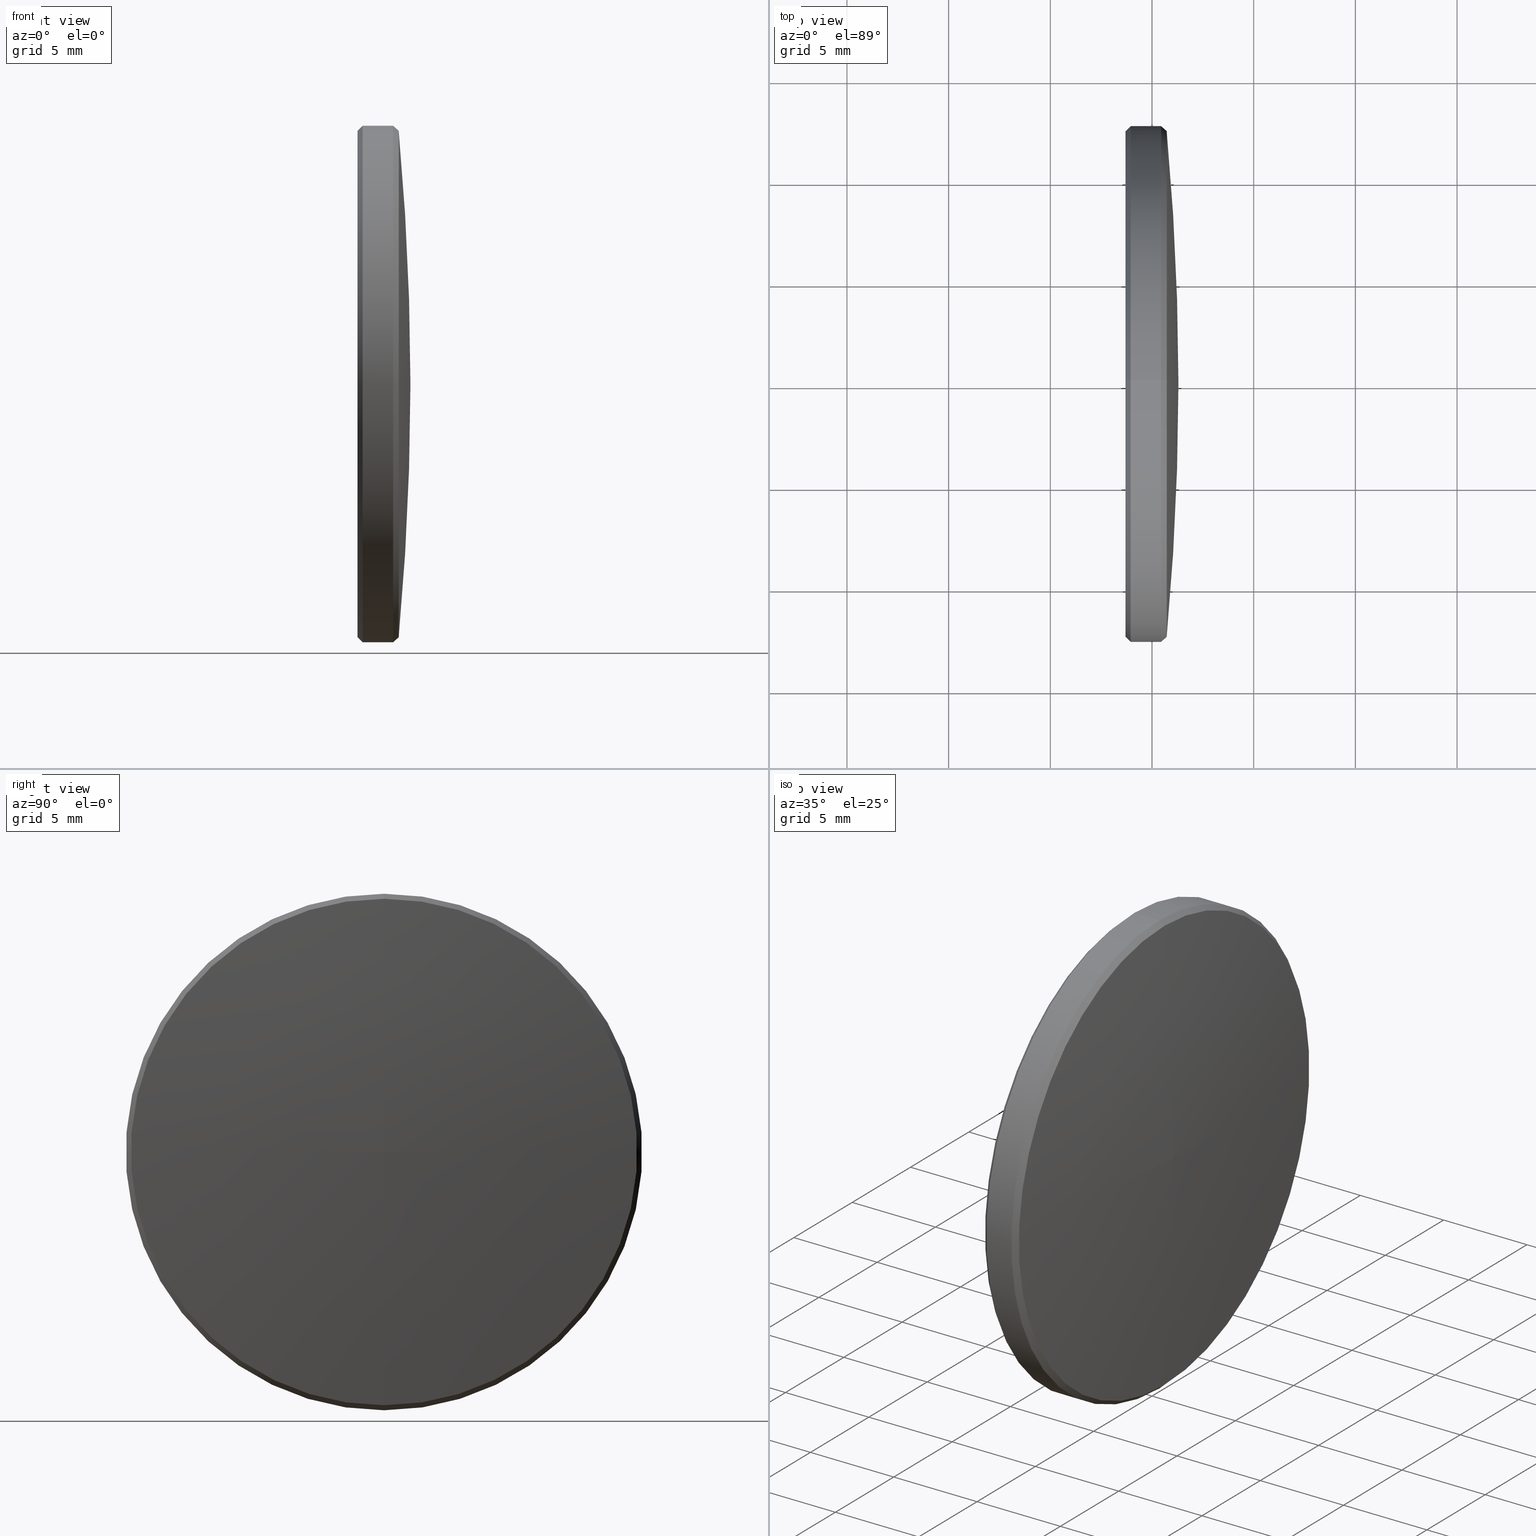
[diagram: canonical four-view strip — front | top / right | iso, engineering-drawing reading convention]
A machine part, canonical four-view strip (front | top / right | iso — engineering-drawing reading convention). The complete STEP part file that produces these views, byte-faithful:
ISO-10303-21;
HEADER;
FILE_DESCRIPTION (( 'STEP AP203' ),
    '1' );
FILE_NAME ('4288-E0W.STEP',
    '2015-05-29T14:22:48',
    ( 'admin' ),
    ( '' ),
    'SwSTEP 2.0',
    'SolidWorks 2014',
    '' );
FILE_SCHEMA (( 'CONFIG_CONTROL_DESIGN' ));
ENDSEC;

DATA;
#1 = CIRCLE ( 'NONE', #140, 12.70000000000000100 ) ;
#2 = PERSON_AND_ORGANIZATION ( #90, #36 ) ;
#3 = CARTESIAN_POINT ( 'NONE',  ( 1.300000000000000000, 0.0000000000000000000, 0.0000000000000000000 ) ) ;
#4 = DIRECTION ( 'NONE',  ( 0.0000000000000000000, 0.0000000000000000000, -1.000000000000000000 ) ) ;
#5 = ORIENTED_EDGE ( 'NONE', *, *, #170, .F. ) ;
#6 = FACE_OUTER_BOUND ( 'NONE', #23, .T. ) ;
#7 = ORIENTED_EDGE ( 'NONE', *, *, #132, .T. ) ;
#8 = PERSON_AND_ORGANIZATION ( #90, #36 ) ;
#9 = ORIENTED_EDGE ( 'NONE', *, *, #179, .F. ) ;
#10 = LINE ( 'NONE', #125, #96 ) ;
#11 = EDGE_CURVE ( 'NONE', #263, #286, #30, .T. ) ;
#12 = DIRECTION ( 'NONE',  ( 1.000000000000000000, 0.0000000000000000000, 0.0000000000000000000 ) ) ;
#13 = DIRECTION ( 'NONE',  ( 0.0000000000000000000, 0.0000000000000000000, -1.000000000000000000 ) ) ;
#14 = AXIS2_PLACEMENT_3D ( 'NONE', #72, #165, #152 ) ;
#15 = DIRECTION ( 'NONE',  ( -1.000000000000000000, -0.0000000000000000000, -0.0000000000000000000 ) ) ;
#16 =( NAMED_UNIT ( * ) PLANE_ANGLE_UNIT ( ) SI_UNIT ( $, .RADIAN. ) );
#17 = ADVANCED_FACE ( 'NONE', ( #283 ), #135, .T. ) ;
#18 = AXIS2_PLACEMENT_3D ( 'NONE', #191, #95, #4 ) ;
#19 = EDGE_CURVE ( 'NONE', #83, #286, #1, .T. ) ;
#20 = DIRECTION ( 'NONE',  ( 1.000000000000000000, 0.0000000000000000000, 0.0000000000000000000 ) ) ;
#21 = AXIS2_PLACEMENT_3D ( 'NONE', #143, #232, #63 ) ;
#22 = APPROVAL ( #161, 'UNSPECIFIED' ) ;
#23 = EDGE_LOOP ( 'NONE', ( #53, #141, #208, #78 ) ) ;
#24 = AXIS2_PLACEMENT_3D ( 'NONE', #60, #55, #233 ) ;
#25 = CYLINDRICAL_SURFACE ( 'NONE', #101, 12.70000000000000100 ) ;
#26 = CC_DESIGN_APPROVAL ( #22, ( #111 ) ) ;
#27 = DIRECTION ( 'NONE',  ( -0.0000000000000000000, 1.000000000000000000, 1.224646799147353200E-016 ) ) ;
#28 = CARTESIAN_POINT ( 'NONE',  ( -1.300000000000000000, 0.0000000000000000000, 0.0000000000000000000 ) ) ;
#29 = DIRECTION ( 'NONE',  ( 0.7071067811865426900, 0.0000000000000000000, -0.7071067811865524600 ) ) ;
#30 = LINE ( 'NONE', #252, #106 ) ;
#31 = LOCAL_TIME ( 10, 22, 48.00000000000000000, #253 ) ;
#32 = CARTESIAN_POINT ( 'NONE',  ( -1.049999999999999800, 0.0000000000000000000, 12.70000000000000100 ) ) ;
#33 = VECTOR ( 'NONE', #110, 1000.000000000000000 ) ;
#34 = ORIENTED_EDGE ( 'NONE', *, *, #120, .F. ) ;
#35 = ORIENTED_EDGE ( 'NONE', *, *, #19, .F. ) ;
#36 = ORGANIZATION ( 'UNSPECIFIED', 'UNSPECIFIED', '' ) ;
#37 = FACE_OUTER_BOUND ( 'NONE', #251, .T. ) ;
#38 = AXIS2_PLACEMENT_3D ( 'NONE', #43, #100, #277 ) ;
#39 = AXIS2_PLACEMENT_3D ( 'NONE', #274, #250, #176 ) ;
#40 = ORIENTED_EDGE ( 'NONE', *, *, #266, .T. ) ;
#41 = APPROVAL_ROLE ( '' ) ;
#42 = CARTESIAN_POINT ( 'NONE',  ( -1.300000000000000000, 1.555301434917138600E-015, -12.70000000000000100 ) ) ;
#43 = CARTESIAN_POINT ( 'NONE',  ( 0.7230408307691560400, 0.0000000000000000000, 0.0000000000000000000 ) ) ;
#44 = EDGE_LOOP ( 'NONE', ( #34, #214, #241 ) ) ;
#45 = TOROIDAL_SURFACE ( 'NONE', #14, -0.1555076715776112800, 138.0000000000000000 ) ;
#46 = AXIS2_PLACEMENT_3D ( 'NONE', #182, #151, #184 ) ;
#47 = CARTESIAN_POINT ( 'NONE',  ( -1.300000000000000000, 0.0000000000000000000, 0.0000000000000000000 ) ) ;
#48 = ORIENTED_EDGE ( 'NONE', *, *, #194, .F. ) ;
#49 = CC_DESIGN_DATE_AND_TIME_ASSIGNMENT ( #296, #196, ( #111 ) ) ;
#50 = APPROVAL_PERSON_ORGANIZATION ( #8, #226, #41 ) ;
#51 = AXIS2_PLACEMENT_3D ( 'NONE', #175, #20, #137 ) ;
#52 = APPROVAL_DATE_TIME ( #235, #204 ) ;
#53 = ORIENTED_EDGE ( 'NONE', *, *, #266, .F. ) ;
#54 = CALENDAR_DATE ( 2015, 29, 5 ) ;
#55 = DIRECTION ( 'NONE',  ( -1.000000000000000000, -0.0000000000000000000, -0.0000000000000000000 ) ) ;
#56 = APPLICATION_CONTEXT ( 'configuration controlled 3d designs of mechanical parts and assemblies' ) ;
#57 = DATE_AND_TIME ( #292, #86 ) ;
#58 = DIRECTION ( 'NONE',  ( 0.0000000000000000000, -1.224646799147353200E-016, 1.000000000000000000 ) ) ;
#59 = ORIENTED_EDGE ( 'NONE', *, *, #194, .T. ) ;
#60 = CARTESIAN_POINT ( 'NONE',  ( 0.4500000000353665500, 0.0000000000000000000, 0.0000000000000000000 ) ) ;
#61 = MECHANICAL_CONTEXT ( 'NONE', #288, 'mechanical' ) ;
#62 = DATE_AND_TIME ( #203, #65 ) ;
#63 = DIRECTION ( 'NONE',  ( 0.0000000000000000000, 0.0000000000000000000, -1.000000000000000000 ) ) ;
#64 = CC_DESIGN_PERSON_AND_ORGANIZATION_ASSIGNMENT ( #118, #178, ( #111 ) ) ;
#65 = LOCAL_TIME ( 10, 22, 48.00000000000000000, #66 ) ;
#66 = COORDINATED_UNIVERSAL_TIME_OFFSET ( 5, 0, .BEHIND. ) ;
#67 = ORIENTED_EDGE ( 'NONE', *, *, #185, .F. ) ;
#68 = APPROVAL_PERSON_ORGANIZATION ( #79, #204, #259 ) ;
#69 = ORIENTED_EDGE ( 'NONE', *, *, #132, .F. ) ;
#70 = TOROIDAL_SURFACE ( 'NONE', #39, -0.1555076715776112800, 138.0000000000000000 ) ;
#71 = AXIS2_PLACEMENT_3D ( 'NONE', #220, #147, #279 ) ;
#72 = CARTESIAN_POINT ( 'NONE',  ( -136.6999123817261400, 0.0000000000000000000, 0.0000000000000000000 ) ) ;
#73 = EDGE_LOOP ( 'NONE', ( #5, #192, #160 ) ) ;
#74 = PERSON_AND_ORGANIZATION ( #90, #36 ) ;
#75 = DIRECTION ( 'NONE',  ( 0.7071067811865426900, 8.659560562354994500E-017, 0.7071067811865524600 ) ) ;
#76 = CIRCLE ( 'NONE', #21, 138.0000000000000000 ) ;
#77 = DIRECTION ( 'NONE',  ( 0.0000000000000000000, 0.0000000000000000000, 1.000000000000000000 ) ) ;
#78 = ORIENTED_EDGE ( 'NONE', *, *, #88, .F. ) ;
#79 = PERSON_AND_ORGANIZATION ( #90, #36 ) ;
#80 =( NAMED_UNIT ( * ) SI_UNIT ( $, .STERADIAN. ) SOLID_ANGLE_UNIT ( ) );
#81 = APPROVAL_STATUS ( 'not_yet_approved' ) ;
#82 = ORIENTED_EDGE ( 'NONE', *, *, #281, .F. ) ;
#83 = VERTEX_POINT ( 'NONE', #32 ) ;
#84 = LINE ( 'NONE', #42, #33 ) ;
#85 = VECTOR ( 'NONE', #171, 1000.000000000000000 ) ;
#86 = LOCAL_TIME ( 10, 22, 48.00000000000000000, #294 ) ;
#87 = AXIS2_PLACEMENT_3D ( 'NONE', #28, #199, #112 ) ;
#88 = EDGE_CURVE ( 'NONE', #131, #167, #221, .T. ) ;
#89 = LINE ( 'NONE', #157, #164 ) ;
#90 = PERSON ( 'UNSPECIFIED', 'UNSPECIFIED', 'UNSPECIFIED', ('UNSPECIFIED'), ('UNSPECIFIED'), ('UNSPECIFIED') ) ;
#91 = ADVANCED_FACE ( 'NONE', ( #37 ), #25, .T. ) ;
#92 = EDGE_CURVE ( 'NONE', #286, #83, #280, .T. ) ;
#93 = ORIENTED_EDGE ( 'NONE', *, *, #88, .T. ) ;
#94 = ADVANCED_BREP_SHAPE_REPRESENTATION ( '4288-E0W', ( #130, #215 ), #276 ) ;
#95 = DIRECTION ( 'NONE',  ( 1.000000000000000000, 0.0000000000000000000, 0.0000000000000000000 ) ) ;
#96 = VECTOR ( 'NONE', #75, 1000.000000000000000 ) ;
#97 = PERSON_AND_ORGANIZATION ( #90, #36 ) ;
#98 = DIRECTION ( 'NONE',  ( 1.000000000000000000, 0.0000000000000000000, 0.0000000000000000000 ) ) ;
#99 = AXIS2_PLACEMENT_3D ( 'NONE', #242, #27, #58 ) ;
#100 = DIRECTION ( 'NONE',  ( 1.000000000000000000, 0.0000000000000000000, 0.0000000000000000000 ) ) ;
#101 = AXIS2_PLACEMENT_3D ( 'NONE', #114, #159, #77 ) ;
#102 = EDGE_LOOP ( 'NONE', ( #7, #291 ) ) ;
#103 = DATE_AND_TIME ( #273, #218 ) ;
#104 = SHAPE_DEFINITION_REPRESENTATION ( #197, #94 ) ;
#105 = AXIS2_PLACEMENT_3D ( 'NONE', #298, #98, #207 ) ;
#106 = VECTOR ( 'NONE', #29, 1000.000000000000000 ) ;
#107 = ADVANCED_FACE ( 'NONE', ( #6 ), #240, .T. ) ;
#108 = EDGE_LOOP ( 'NONE', ( #154, #40, #238, #9 ) ) ;
#109 = ORIENTED_EDGE ( 'NONE', *, *, #92, .F. ) ;
#110 = DIRECTION ( 'NONE',  ( -1.000000000000000000, -0.0000000000000000000, -0.0000000000000000000 ) ) ;
#111 = SECURITY_CLASSIFICATION ( '', '', #224 ) ;
#112 = DIRECTION ( 'NONE',  ( 0.0000000000000000000, 0.0000000000000000000, -1.000000000000000000 ) ) ;
#113 = DIRECTION ( 'NONE',  ( -1.000000000000000000, -0.0000000000000000000, -0.0000000000000000000 ) ) ;
#114 = CARTESIAN_POINT ( 'NONE',  ( -1.300000000000000000, 0.0000000000000000000, 0.0000000000000000000 ) ) ;
#115 = VERTEX_POINT ( 'NONE', #3 ) ;
#116 =( LENGTH_UNIT ( ) NAMED_UNIT ( * ) SI_UNIT ( .MILLI., .METRE. ) );
#117 = ORIENTED_EDGE ( 'NONE', *, *, #92, .T. ) ;
#118 = PERSON_AND_ORGANIZATION ( #90, #36 ) ;
#119 = CC_DESIGN_PERSON_AND_ORGANIZATION_ASSIGNMENT ( #153, #145, ( #295 ) ) ;
#120 = EDGE_CURVE ( 'NONE', #115, #206, #172, .T. ) ;
#121 = PERSON_AND_ORGANIZATION_ROLE ( 'design_owner' ) ;
#122 = CIRCLE ( 'NONE', #188, 12.44999999999999800 ) ;
#123 = PRODUCT ( '4288-E0W', '4288-E0W', '', ( #61 ) ) ;
#124 = AXIS2_PLACEMENT_3D ( 'NONE', #272, #15, #301 ) ;
#125 = CARTESIAN_POINT ( 'NONE',  ( -1.300000000000000000, 1.524685264938454400E-015, 12.44999999999999800 ) ) ;
#126 = CARTESIAN_POINT ( 'NONE',  ( -1.300000000000000000, 1.539993349927796500E-015, 12.44999999999999800 ) ) ;
#127 = PERSON_AND_ORGANIZATION_ROLE ( 'creator' ) ;
#128 = AXIS2_PLACEMENT_3D ( 'NONE', #47, #113, #166 ) ;
#129 = CIRCLE ( 'NONE', #87, 12.44999999999999800 ) ;
#130 = MANIFOLD_SOLID_BREP ( '4288-001-1-solid1', #265 ) ;
#131 = VERTEX_POINT ( 'NONE', #142 ) ;
#132 = EDGE_CURVE ( 'NONE', #263, #205, #129, .T. ) ;
#133 = APPROVAL_DATE_TIME ( #57, #226 ) ;
#134 = CARTESIAN_POINT ( 'NONE',  ( 0.7230408307691560400, 0.0000000000000000000, 12.45131311545400300 ) ) ;
#135 = CYLINDRICAL_SURFACE ( 'NONE', #128, 12.70000000000000100 ) ;
#136 = APPROVAL_STATUS ( 'not_yet_approved' ) ;
#137 = DIRECTION ( 'NONE',  ( 0.0000000000000000000, 0.0000000000000000000, 1.000000000000000000 ) ) ;
#138 = ADVANCED_FACE ( 'NONE', ( #148 ), #163, .T. ) ;
#139 = FACE_OUTER_BOUND ( 'NONE', #44, .T. ) ;
#140 = AXIS2_PLACEMENT_3D ( 'NONE', #239, #234, #13 ) ;
#141 = ORIENTED_EDGE ( 'NONE', *, *, #162, .F. ) ;
#142 = CARTESIAN_POINT ( 'NONE',  ( 0.4500000000353665500, 1.555301434917138600E-015, -12.70000000000000100 ) ) ;
#143 = CARTESIAN_POINT ( 'NONE',  ( -136.6999123817261400, 0.0000000000000000000, -0.1555076715776112800 ) ) ;
#144 = CARTESIAN_POINT ( 'NONE',  ( -1.049999999999999800, 1.555301434917138600E-015, -12.70000000000000100 ) ) ;
#145 = PERSON_AND_ORGANIZATION_ROLE ( 'design_supplier' ) ;
#146 = ADVANCED_FACE ( 'NONE', ( #271 ), #299, .F. ) ;
#147 = DIRECTION ( 'NONE',  ( -1.000000000000000000, -0.0000000000000000000, -0.0000000000000000000 ) ) ;
#148 = FACE_OUTER_BOUND ( 'NONE', #108, .T. ) ;
#149 = CONICAL_SURFACE ( 'NONE', #18, 12.44999999999999800, 0.7853981633974552700 ) ;
#150 = ADVANCED_FACE ( 'NONE', ( #229 ), #70, .T. ) ;
#151 = DIRECTION ( 'NONE',  ( 1.000000000000000000, 0.0000000000000000000, 0.0000000000000000000 ) ) ;
#152 = DIRECTION ( 'NONE',  ( 0.0000000000000000000, 0.0000000000000000000, 1.000000000000000000 ) ) ;
#153 = PERSON_AND_ORGANIZATION ( #90, #36 ) ;
#154 = ORIENTED_EDGE ( 'NONE', *, *, #158, .F. ) ;
#155 = DIRECTION ( 'NONE',  ( -1.000000000000000000, -0.0000000000000000000, -0.0000000000000000000 ) ) ;
#156 = DATE_TIME_ROLE ( 'creation_date' ) ;
#157 = CARTESIAN_POINT ( 'NONE',  ( 0.4500000000353665500, 1.555301434917138600E-015, -12.70000000000000100 ) ) ;
#158 = EDGE_CURVE ( 'NONE', #206, #247, #275, .T. ) ;
#159 = DIRECTION ( 'NONE',  ( -1.000000000000000000, -0.0000000000000000000, -0.0000000000000000000 ) ) ;
#160 = ORIENTED_EDGE ( 'NONE', *, *, #158, .T. ) ;
#161 = APPROVAL_STATUS ( 'not_yet_approved' ) ;
#162 = EDGE_CURVE ( 'NONE', #247, #206, #245, .T. ) ;
#163 = CONICAL_SURFACE ( 'NONE', #71, 12.70000000000000100, 0.7387526053002000400 ) ;
#164 = VECTOR ( 'NONE', #285, 1000.000000000000000 ) ;
#165 = DIRECTION ( 'NONE',  ( -1.000000000000000000, -0.0000000000000000000, -0.0000000000000000000 ) ) ;
#166 = DIRECTION ( 'NONE',  ( 0.0000000000000000000, 0.0000000000000000000, 1.000000000000000000 ) ) ;
#167 = VERTEX_POINT ( 'NONE', #282 ) ;
#168 = AXIS2_PLACEMENT_3D ( 'NONE', #186, #155, #181 ) ;
#169 = EDGE_CURVE ( 'NONE', #167, #131, #174, .T. ) ;
#170 = EDGE_CURVE ( 'NONE', #115, #247, #76, .T. ) ;
#171 = DIRECTION ( 'NONE',  ( -1.000000000000000000, -0.0000000000000000000, -0.0000000000000000000 ) ) ;
#172 = CIRCLE ( 'NONE', #99, 138.0000000000000000 ) ;
#173 = PRODUCT_DEFINITION ( 'UNKNOWN', '', #295, #227 ) ;
#174 = CIRCLE ( 'NONE', #24, 12.70000000000000100 ) ;
#175 = CARTESIAN_POINT ( 'NONE',  ( 0.7230408307691560400, 0.0000000000000000000, 0.0000000000000000000 ) ) ;
#176 = DIRECTION ( 'NONE',  ( 0.0000000000000000000, 0.0000000000000000000, 1.000000000000000000 ) ) ;
#177 = DIRECTION ( 'NONE',  ( 0.0000000000000000000, 0.0000000000000000000, 1.000000000000000000 ) ) ;
#178 = PERSON_AND_ORGANIZATION_ROLE ( 'classification_officer' ) ;
#179 = EDGE_CURVE ( 'NONE', #247, #167, #216, .T. ) ;
#180 = APPLICATION_PROTOCOL_DEFINITION ( 'international standard', 'config_control_design', 1994, #56 ) ;
#181 = DIRECTION ( 'NONE',  ( 0.0000000000000000000, 0.0000000000000000000, 1.000000000000000000 ) ) ;
#182 = CARTESIAN_POINT ( 'NONE',  ( -1.300000000000000000, 0.0000000000000000000, 0.0000000000000000000 ) ) ;
#183 = CONICAL_SURFACE ( 'NONE', #297, 12.44999999999999800, 0.7853981633974552700 ) ;
#184 = DIRECTION ( 'NONE',  ( 0.0000000000000000000, 0.0000000000000000000, -1.000000000000000000 ) ) ;
#185 = EDGE_CURVE ( 'NONE', #167, #83, #248, .T. ) ;
#186 = CARTESIAN_POINT ( 'NONE',  ( 0.4500000000353665500, 0.0000000000000000000, 0.0000000000000000000 ) ) ;
#187 = APPLICATION_PROTOCOL_DEFINITION ( 'international standard', 'config_control_design', 1994, #288 ) ;
#188 = AXIS2_PLACEMENT_3D ( 'NONE', #262, #260, #254 ) ;
#189 = EDGE_CURVE ( 'NONE', #205, #83, #10, .T. ) ;
#190 = VECTOR ( 'NONE', #201, 1000.000000000000000 ) ;
#191 = CARTESIAN_POINT ( 'NONE',  ( -1.300000000000000000, 0.0000000000000000000, 0.0000000000000000000 ) ) ;
#192 = ORIENTED_EDGE ( 'NONE', *, *, #120, .T. ) ;
#193 = CC_DESIGN_SECURITY_CLASSIFICATION ( #111, ( #295 ) ) ;
#194 = EDGE_CURVE ( 'NONE', #131, #286, #84, .T. ) ;
#195 = APPROVAL_ROLE ( '' ) ;
#196 = DATE_TIME_ROLE ( 'classification_date' ) ;
#197 = PRODUCT_DEFINITION_SHAPE ( 'NONE', 'NONE',  #173 ) ;
#198 = CC_DESIGN_APPROVAL ( #204, ( #173 ) ) ;
#199 = DIRECTION ( 'NONE',  ( -1.000000000000000000, -0.0000000000000000000, -0.0000000000000000000 ) ) ;
#200 = ORIENTED_EDGE ( 'NONE', *, *, #19, .T. ) ;
#201 = DIRECTION ( 'NONE',  ( -0.7393090871524890000, 0.0000000000000000000, 0.6733662255071555200 ) ) ;
#202 = ADVANCED_FACE ( 'NONE', ( #139 ), #45, .T. ) ;
#203 = CALENDAR_DATE ( 2015, 29, 5 ) ;
#204 = APPROVAL ( #136, 'UNSPECIFIED' ) ;
#205 = VERTEX_POINT ( 'NONE', #126 ) ;
#206 = VERTEX_POINT ( 'NONE', #258 ) ;
#207 = DIRECTION ( 'NONE',  ( 0.0000000000000000000, 0.0000000000000000000, -1.000000000000000000 ) ) ;
#208 = ORIENTED_EDGE ( 'NONE', *, *, #179, .T. ) ;
#209 = APPROVAL_PERSON_ORGANIZATION ( #97, #22, #195 ) ;
#210 = CARTESIAN_POINT ( 'NONE',  ( -1.300000000000000000, 0.0000000000000000000, 12.70000000000000100 ) ) ;
#211 = CC_DESIGN_PERSON_AND_ORGANIZATION_ASSIGNMENT ( #74, #127, ( #295 ) ) ;
#212 = EDGE_LOOP ( 'NONE', ( #48, #93, #236, #200 ) ) ;
#213 = CC_DESIGN_PERSON_AND_ORGANIZATION_ASSIGNMENT ( #228, #121, ( #123 ) ) ;
#214 = ORIENTED_EDGE ( 'NONE', *, *, #170, .T. ) ;
#215 = AXIS2_PLACEMENT_3D ( 'NONE', #270, #177, #223 ) ;
#216 = LINE ( 'NONE', #249, #190 ) ;
#217 = ORIENTED_EDGE ( 'NONE', *, *, #11, .F. ) ;
#218 = LOCAL_TIME ( 10, 22, 48.00000000000000000, #231 ) ;
#219 = CC_DESIGN_APPROVAL ( #226, ( #295 ) ) ;
#220 = CARTESIAN_POINT ( 'NONE',  ( 0.4500000000353665500, 0.0000000000000000000, 0.0000000000000000000 ) ) ;
#221 = CIRCLE ( 'NONE', #168, 12.70000000000000100 ) ;
#222 = ORIENTED_EDGE ( 'NONE', *, *, #169, .T. ) ;
#223 = DIRECTION ( 'NONE',  ( 1.000000000000000000, 0.0000000000000000000, 0.0000000000000000000 ) ) ;
#224 = SECURITY_CLASSIFICATION_LEVEL ( 'unclassified' ) ;
#225 = FACE_OUTER_BOUND ( 'NONE', #300, .T. ) ;
#226 = APPROVAL ( #81, 'UNSPECIFIED' ) ;
#227 = DESIGN_CONTEXT ( 'detailed design', #56, 'design' ) ;
#228 = PERSON_AND_ORGANIZATION ( #90, #36 ) ;
#229 = FACE_OUTER_BOUND ( 'NONE', #73, .T. ) ;
#230 = PERSON_AND_ORGANIZATION_ROLE ( 'creator' ) ;
#231 = COORDINATED_UNIVERSAL_TIME_OFFSET ( 5, 0, .BEHIND. ) ;
#232 = DIRECTION ( 'NONE',  ( 0.0000000000000000000, -1.000000000000000000, 0.0000000000000000000 ) ) ;
#233 = DIRECTION ( 'NONE',  ( 0.0000000000000000000, 0.0000000000000000000, 1.000000000000000000 ) ) ;
#234 = DIRECTION ( 'NONE',  ( 1.000000000000000000, 0.0000000000000000000, 0.0000000000000000000 ) ) ;
#235 = DATE_AND_TIME ( #54, #31 ) ;
#236 = ORIENTED_EDGE ( 'NONE', *, *, #185, .T. ) ;
#237 = CALENDAR_DATE ( 2015, 29, 5 ) ;
#238 = ORIENTED_EDGE ( 'NONE', *, *, #169, .F. ) ;
#239 = CARTESIAN_POINT ( 'NONE',  ( -1.049999999999999800, 0.0000000000000000000, 0.0000000000000000000 ) ) ;
#240 = CONICAL_SURFACE ( 'NONE', #124, 12.70000000000000100, 0.7387526053002000400 ) ;
#241 = ORIENTED_EDGE ( 'NONE', *, *, #162, .T. ) ;
#242 = CARTESIAN_POINT ( 'NONE',  ( -136.6999123817261400, -1.904419722403794800E-017, 0.1555076715776112800 ) ) ;
#243 = ADVANCED_FACE ( 'NONE', ( #289 ), #149, .T. ) ;
#244 = CC_DESIGN_DATE_AND_TIME_ASSIGNMENT ( #62, #156, ( #173 ) ) ;
#245 = CIRCLE ( 'NONE', #38, 12.45131311545390700 ) ;
#246 = CARTESIAN_POINT ( 'NONE',  ( -1.300000000000000000, 0.0000000000000000000, -12.44999999999999800 ) ) ;
#247 = VERTEX_POINT ( 'NONE', #134 ) ;
#248 = LINE ( 'NONE', #210, #85 ) ;
#249 = CARTESIAN_POINT ( 'NONE',  ( 0.4500000000353665500, 0.0000000000000000000, 12.70000000000000100 ) ) ;
#250 = DIRECTION ( 'NONE',  ( -1.000000000000000000, -0.0000000000000000000, -0.0000000000000000000 ) ) ;
#251 = EDGE_LOOP ( 'NONE', ( #222, #59, #117, #67 ) ) ;
#252 = CARTESIAN_POINT ( 'NONE',  ( -1.300000000000000000, 0.0000000000000000000, -12.44999999999999800 ) ) ;
#253 = COORDINATED_UNIVERSAL_TIME_OFFSET ( 5, 0, .BEHIND. ) ;
#254 = DIRECTION ( 'NONE',  ( 0.0000000000000000000, 0.0000000000000000000, -1.000000000000000000 ) ) ;
#255 = LOCAL_TIME ( 10, 22, 48.00000000000000000, #256 ) ;
#256 = COORDINATED_UNIVERSAL_TIME_OFFSET ( 5, 0, .BEHIND. ) ;
#257 = ORIENTED_EDGE ( 'NONE', *, *, #189, .F. ) ;
#258 = CARTESIAN_POINT ( 'NONE',  ( 0.7230408307691560400, 1.524846075202220200E-015, -12.45131311545400300 ) ) ;
#259 = APPROVAL_ROLE ( '' ) ;
#260 = DIRECTION ( 'NONE',  ( -1.000000000000000000, -0.0000000000000000000, -0.0000000000000000000 ) ) ;
#261 = CC_DESIGN_PERSON_AND_ORGANIZATION_ASSIGNMENT ( #2, #230, ( #173 ) ) ;
#262 = CARTESIAN_POINT ( 'NONE',  ( -1.300000000000000000, 0.0000000000000000000, 0.0000000000000000000 ) ) ;
#263 = VERTEX_POINT ( 'NONE', #246 ) ;
#264 = APPROVAL_DATE_TIME ( #103, #22 ) ;
#265 = CLOSED_SHELL ( 'NONE', ( #243, #138, #150, #91, #146, #17, #202, #107, #290 ) ) ;
#266 = EDGE_CURVE ( 'NONE', #206, #131, #89, .T. ) ;
#267 = DIRECTION ( 'NONE',  ( 0.0000000000000000000, 0.0000000000000000000, -1.000000000000000000 ) ) ;
#268 = UNCERTAINTY_MEASURE_WITH_UNIT (LENGTH_MEASURE( 1.000000000000000100E-005 ), #116, 'distance_accuracy_value', 'NONE');
#269 = CARTESIAN_POINT ( 'NONE',  ( -1.300000000000000000, 0.0000000000000000000, 0.0000000000000000000 ) ) ;
#270 = CARTESIAN_POINT ( 'NONE',  ( 0.0000000000000000000, 0.0000000000000000000, 0.0000000000000000000 ) ) ;
#271 = FACE_OUTER_BOUND ( 'NONE', #102, .T. ) ;
#272 = CARTESIAN_POINT ( 'NONE',  ( 0.4500000000353665500, 0.0000000000000000000, 0.0000000000000000000 ) ) ;
#273 = CALENDAR_DATE ( 2015, 29, 5 ) ;
#274 = CARTESIAN_POINT ( 'NONE',  ( -136.6999123817261400, 0.0000000000000000000, 0.0000000000000000000 ) ) ;
#275 = CIRCLE ( 'NONE', #51, 12.45131311545390700 ) ;
#276 =( GEOMETRIC_REPRESENTATION_CONTEXT ( 3 ) GLOBAL_UNCERTAINTY_ASSIGNED_CONTEXT ( ( #268 ) ) GLOBAL_UNIT_ASSIGNED_CONTEXT ( ( #116, #16, #80 ) ) REPRESENTATION_CONTEXT ( 'NONE', 'WORKASPACE' ) );
#277 = DIRECTION ( 'NONE',  ( 0.0000000000000000000, 0.0000000000000000000, 1.000000000000000000 ) ) ;
#278 = EDGE_LOOP ( 'NONE', ( #82, #287, #109, #217 ) ) ;
#279 = DIRECTION ( 'NONE',  ( 0.0000000000000000000, 0.0000000000000000000, 1.000000000000000000 ) ) ;
#280 = CIRCLE ( 'NONE', #105, 12.70000000000000100 ) ;
#281 = EDGE_CURVE ( 'NONE', #205, #263, #122, .T. ) ;
#282 = CARTESIAN_POINT ( 'NONE',  ( 0.4500000000353665500, 0.0000000000000000000, 12.70000000000000100 ) ) ;
#283 = FACE_OUTER_BOUND ( 'NONE', #212, .T. ) ;
#284 = ORIENTED_EDGE ( 'NONE', *, *, #11, .T. ) ;
#285 = DIRECTION ( 'NONE',  ( -0.7393090871524890000, 8.246357927212729600E-017, -0.6733662255071555200 ) ) ;
#286 = VERTEX_POINT ( 'NONE', #144 ) ;
#287 = ORIENTED_EDGE ( 'NONE', *, *, #189, .T. ) ;
#288 = APPLICATION_CONTEXT ( 'configuration controlled 3d designs of mechanical parts and assemblies' ) ;
#289 = FACE_OUTER_BOUND ( 'NONE', #278, .T. ) ;
#290 = ADVANCED_FACE ( 'NONE', ( #225 ), #183, .T. ) ;
#291 = ORIENTED_EDGE ( 'NONE', *, *, #281, .T. ) ;
#292 = CALENDAR_DATE ( 2015, 29, 5 ) ;
#293 = PRODUCT_RELATED_PRODUCT_CATEGORY ( 'detail', '', ( #123 ) ) ;
#294 = COORDINATED_UNIVERSAL_TIME_OFFSET ( 5, 0, .BEHIND. ) ;
#295 = PRODUCT_DEFINITION_FORMATION_WITH_SPECIFIED_SOURCE ( 'ANY', '', #123, .NOT_KNOWN. ) ;
#296 = DATE_AND_TIME ( #237, #255 ) ;
#297 = AXIS2_PLACEMENT_3D ( 'NONE', #269, #12, #267 ) ;
#298 = CARTESIAN_POINT ( 'NONE',  ( -1.049999999999999800, 0.0000000000000000000, 0.0000000000000000000 ) ) ;
#299 = PLANE ( 'NONE',  #46 ) ;
#300 = EDGE_LOOP ( 'NONE', ( #257, #69, #284, #35 ) ) ;
#301 = DIRECTION ( 'NONE',  ( 0.0000000000000000000, 0.0000000000000000000, 1.000000000000000000 ) ) ;
ENDSEC;
END-ISO-10303-21;
